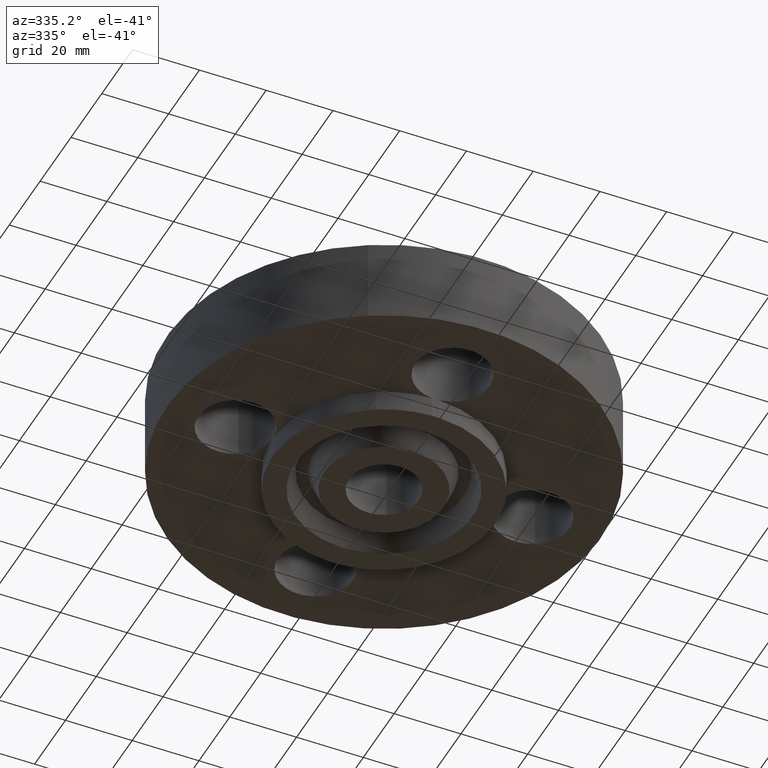
[diagram: clean part render]
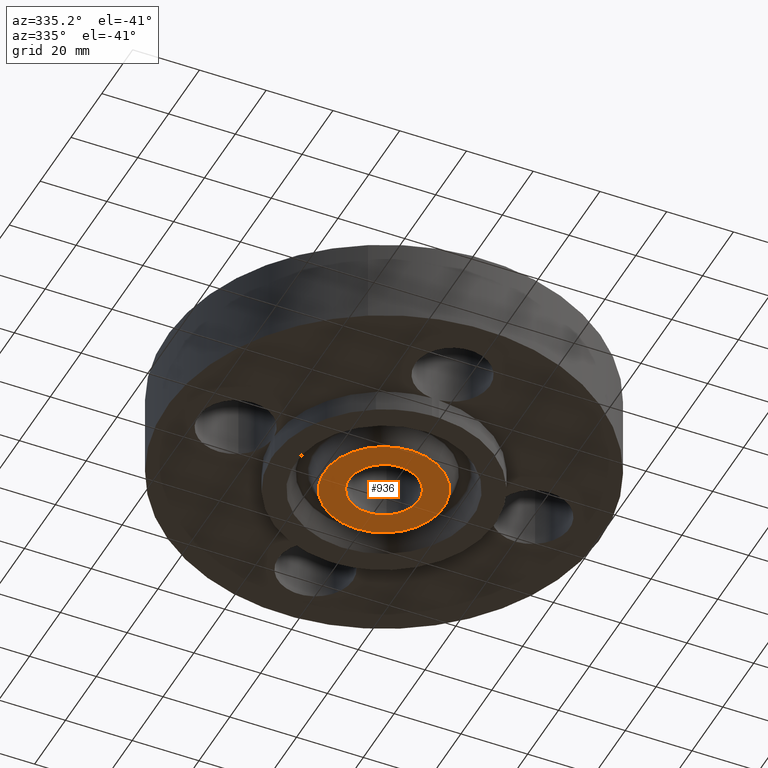
[diagram: same view with one face highlighted and labeled with its STEP entity id]
A machine part, auxiliary view. The second image highlights one B-rep face of the part: STEP entity #936.
In plain terms, the highlighted planar face has unit normal (0, 0, -1).
Its self-contained STEP definition (entity closure, byte-faithful):
#458=AXIS2_PLACEMENT_3D('Circle Axis2P3D',#456,#457,$) ;
#477=AXIS2_PLACEMENT_3D('Circle Axis2P3D',#475,#476,$) ;
#881=AXIS2_PLACEMENT_3D('Plane Axis2P3D',#878,#879,#880) ;
#916=AXIS2_PLACEMENT_3D('Circle Axis2P3D',#914,#915,$) ;
#925=AXIS2_PLACEMENT_3D('Circle Axis2P3D',#923,#924,$) ;
#453=CARTESIAN_POINT('Vertex',(-0.197523321906,-0.3615640155,-0.250000000001)) ;
#456=CARTESIAN_POINT('Axis2P3D Location',(0.,0.,-0.250000000001)) ;
#460=CARTESIAN_POINT('Vertex',(0.197523321906,0.3615640155,-0.250000000001)) ;
#475=CARTESIAN_POINT('Axis2P3D Location',(0.,0.,-0.250000000001)) ;
#878=CARTESIAN_POINT('Axis2P3D Location',(0.,0.412000000002,-0.250000000001)) ;
#914=CARTESIAN_POINT('Axis2P3D Location',(1.39870617276E-016,-6.99353086378E-017,-0.250000000001)) ;
#918=CARTESIAN_POINT('Vertex',(-0.33703615364,0.616940541011,-0.250000000001)) ;
#920=CARTESIAN_POINT('Vertex',(0.33703615364,-0.616940541011,-0.250000000001)) ;
#923=CARTESIAN_POINT('Axis2P3D Location',(1.39870617276E-016,0.,-0.250000000001)) ;
#457=DIRECTION('Axis2P3D Direction',(0.,0.,-0.0393700787402)) ;
#476=DIRECTION('Axis2P3D Direction',(0.,0.,-0.0393700787402)) ;
#879=DIRECTION('Axis2P3D Direction',(0.,0.,-0.0393700787402)) ;
#880=DIRECTION('Axis2P3D XDirection',(0.0393700787402,0.,0.)) ;
#915=DIRECTION('Axis2P3D Direction',(0.,0.,-0.0393700787402)) ;
#924=DIRECTION('Axis2P3D Direction',(0.,0.,-0.0393700787402)) ;
#929=ORIENTED_EDGE('',*,*,#922,.T.) ;
#930=ORIENTED_EDGE('',*,*,#927,.T.) ;
#933=ORIENTED_EDGE('',*,*,#479,.F.) ;
#934=ORIENTED_EDGE('',*,*,#462,.F.) ;
#935=FACE_BOUND('',#932,.T.) ;
#936=ADVANCED_FACE('PartBody',(#931,#935),#882,.T.) ;
#459=CIRCLE('generated circle',#458,0.412000000002) ;
#478=CIRCLE('generated circle',#477,0.412000000002) ;
#917=CIRCLE('generated circle',#916,0.703000000003) ;
#926=CIRCLE('generated circle',#925,0.703000000003) ;
#462=EDGE_CURVE('',#454,#461,#459,.T.) ;
#479=EDGE_CURVE('',#461,#454,#478,.T.) ;
#922=EDGE_CURVE('',#919,#921,#917,.T.) ;
#927=EDGE_CURVE('',#921,#919,#926,.T.) ;
#928=EDGE_LOOP('',(#929,#930)) ;
#932=EDGE_LOOP('',(#933,#934)) ;
#931=FACE_OUTER_BOUND('',#928,.T.) ;
#882=PLANE('',#881) ;
#454=VERTEX_POINT('',#453) ;
#461=VERTEX_POINT('',#460) ;
#919=VERTEX_POINT('',#918) ;
#921=VERTEX_POINT('',#920) ;